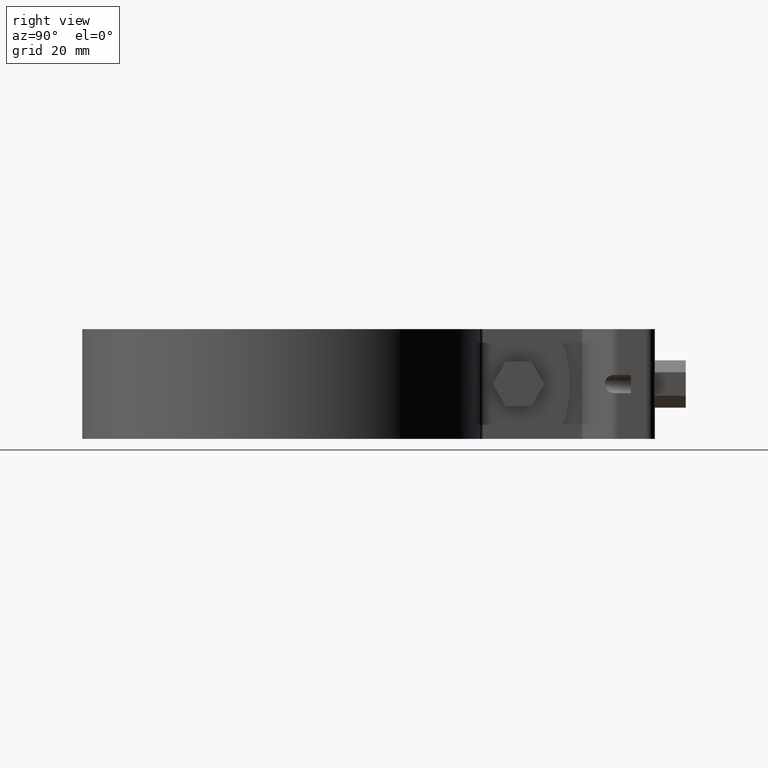
[diagram: clean part render]
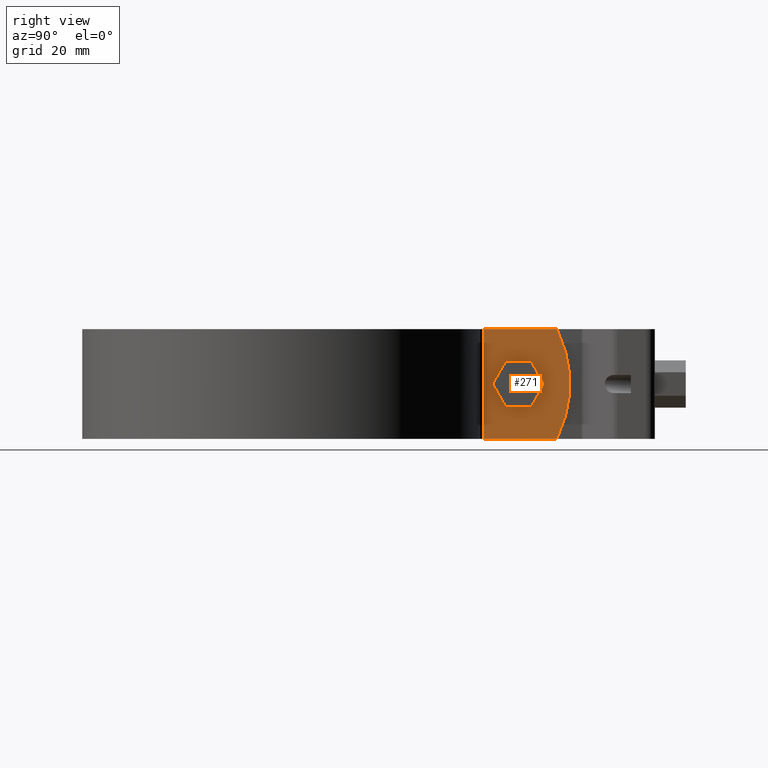
[diagram: same view with one face highlighted and labeled with its STEP entity id]
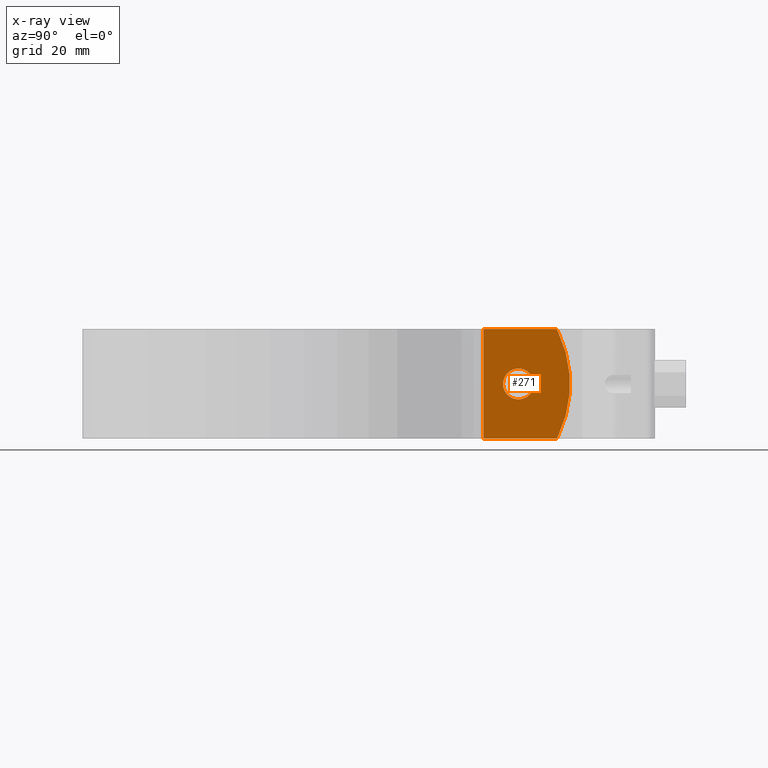
[diagram: x-ray of the same camera — body ghosted, the highlighted face saturated]
A machine part, right view. The second image highlights one B-rep face of the part: STEP entity #271.
The next image is the same camera in x-ray: the body ghosted, the highlighted face saturated — about 0% of this face is hidden behind the body in this view.
In plain terms, the highlighted planar face has unit normal (1, -0, 0).
Its self-contained STEP definition (entity closure, byte-faithful):
#271 = ADVANCED_FACE( '', ( #391, #392 ), #393, .T. );
#391 = FACE_OUTER_BOUND( '', #647, .T. );
#392 = FACE_BOUND( '', #648, .T. );
#393 = PLANE( '', #649 );
#647 = EDGE_LOOP( '', ( #933, #934, #935, #936, #937, #938 ) );
#648 = EDGE_LOOP( '', ( #939 ) );
#649 = AXIS2_PLACEMENT_3D( '', #940, #941, #942 );
#933 = ORIENTED_EDGE( '', *, *, #1830, .T. );
#934 = ORIENTED_EDGE( '', *, *, #1845, .T. );
#935 = ORIENTED_EDGE( '', *, *, #1846, .T. );
#936 = ORIENTED_EDGE( '', *, *, #1847, .T. );
#937 = ORIENTED_EDGE( '', *, *, #1848, .F. );
#938 = ORIENTED_EDGE( '', *, *, #1849, .F. );
#939 = ORIENTED_EDGE( '', *, *, #1850, .T. );
#940 = CARTESIAN_POINT( '', ( 5.50000000000000, 58.7917723835572, -16.0000000000000 ) );
#941 = DIRECTION( '', ( 1.00000000000000, -6.06692130572647E-017, 0.000000000000000 ) );
#942 = DIRECTION( '', ( 6.06692130572647E-017, 1.00000000000000, 0.000000000000000 ) );
#1830 = EDGE_CURVE( '', #2132, #2129, #2133, .T. );
#1845 = EDGE_CURVE( '', #2129, #2158, #2159, .T. );
#1846 = EDGE_CURVE( '', #2158, #2160, #2161, .T. );
#1847 = EDGE_CURVE( '', #2160, #2162, #2163, .T. );
#1848 = EDGE_CURVE( '', #2164, #2162, #2165, .T. );
#1849 = EDGE_CURVE( '', #2132, #2164, #2166, .T. );
#1850 = EDGE_CURVE( '', #2167, #2167, #2168, .F. );
#2129 = VERTEX_POINT( '', #2626 );
#2132 = VERTEX_POINT( '', #2630 );
#2133 = LINE( '', #2631, #2632 );
#2158 = VERTEX_POINT( '', #2664 );
#2159 = LINE( '', #2665, #2666 );
#2160 = VERTEX_POINT( '', #2667 );
#2161 = CIRCLE( '', #2668, 35.0000000000000 );
#2162 = VERTEX_POINT( '', #2669 );
#2163 = LINE( '', #2670, #2671 );
#2164 = VERTEX_POINT( '', #2672 );
#2165 = LINE( '', #2673, #2674 );
#2166 = LINE( '', #2675, #2676 );
#2167 = VERTEX_POINT( '', #2677 );
#2168 = CIRCLE( '', #2678, 4.50000000000000 );
#2626 = CARTESIAN_POINT( '', ( 5.50000000000001, 80.1209941368834, -16.0000000000000 ) );
#2630 = CARTESIAN_POINT( '', ( 5.50000000000000, 58.7917723835572, -16.0000000000000 ) );
#2631 = CARTESIAN_POINT( '', ( 5.50000000000000, 58.7917723835572, -16.0000000000000 ) );
#2632 = VECTOR( '', #3409, 1000.00000000000 );
#2664 = CARTESIAN_POINT( '', ( 5.50000000000001, 80.5953357859086, -15.0000000000000 ) );
#2665 = CARTESIAN_POINT( '', ( 5.50000000000001, 76.2033819781092, -24.2590516072638 ) );
#2666 = VECTOR( '', #3438, 1000.00000000000 );
#2667 = CARTESIAN_POINT( '', ( 5.50000000000001, 80.5953357859086, 15.0000000000000 ) );
#2668 = AXIS2_PLACEMENT_3D( '', #3439, #3440, #3441 );
#2669 = CARTESIAN_POINT( '', ( 5.50000000000001, 80.1209941368834, 16.0000000000000 ) );
#2670 = CARTESIAN_POINT( '', ( 5.50000000000001, 88.5943475036669, -1.86339737232805 ) );
#2671 = VECTOR( '', #3442, 1000.00000000000 );
#2672 = CARTESIAN_POINT( '', ( 5.50000000000000, 58.7917723835572, 16.0000000000000 ) );
#2673 = CARTESIAN_POINT( '', ( 5.50000000000000, 58.7917723835572, 16.0000000000000 ) );
#2674 = VECTOR( '', #3443, 1000.00000000000 );
#2675 = CARTESIAN_POINT( '', ( 5.50000000000000, 58.7917723835572, -16.0000000000000 ) );
#2676 = VECTOR( '', #3444, 1000.00000000000 );
#2677 = CARTESIAN_POINT( '', ( 5.50000000000001, 73.4725591842248, -8.67361737988404E-016 ) );
#2678 = AXIS2_PLACEMENT_3D( '', #3445, #3446, #3447 );
#3409 = DIRECTION( '', ( 6.06692130572647E-017, 1.00000000000000, 0.000000000000000 ) );
#3438 = DIRECTION( '', ( 2.60010913102563E-017, 0.428571428571428, 0.903507902905251 ) );
#3439 = CARTESIAN_POINT( '', ( 5.50000000000001, 48.9725591842248, -3.84044181977374E-031 ) );
#3440 = DIRECTION( '', ( 1.00000000000000, -6.06692130572647E-017, 0.000000000000000 ) );
#3441 = DIRECTION( '', ( 6.06692130572647E-017, 1.00000000000000, 0.000000000000000 ) );
#3442 = DIRECTION( '', ( -2.60010913102563E-017, -0.428571428571429, 0.903507902905251 ) );
#3443 = DIRECTION( '', ( 6.06692130572647E-017, 1.00000000000000, 0.000000000000000 ) );
#3444 = DIRECTION( '', ( 0.000000000000000, 0.000000000000000, 1.00000000000000 ) );
#3445 = CARTESIAN_POINT( '', ( 5.50000000000001, 68.9725591842248, -8.67361737988404E-016 ) );
#3446 = DIRECTION( '', ( 1.00000000000000, -6.06692130572647E-017, 0.000000000000000 ) );
#3447 = DIRECTION( '', ( 6.06692130572647E-017, 1.00000000000000, 0.000000000000000 ) );